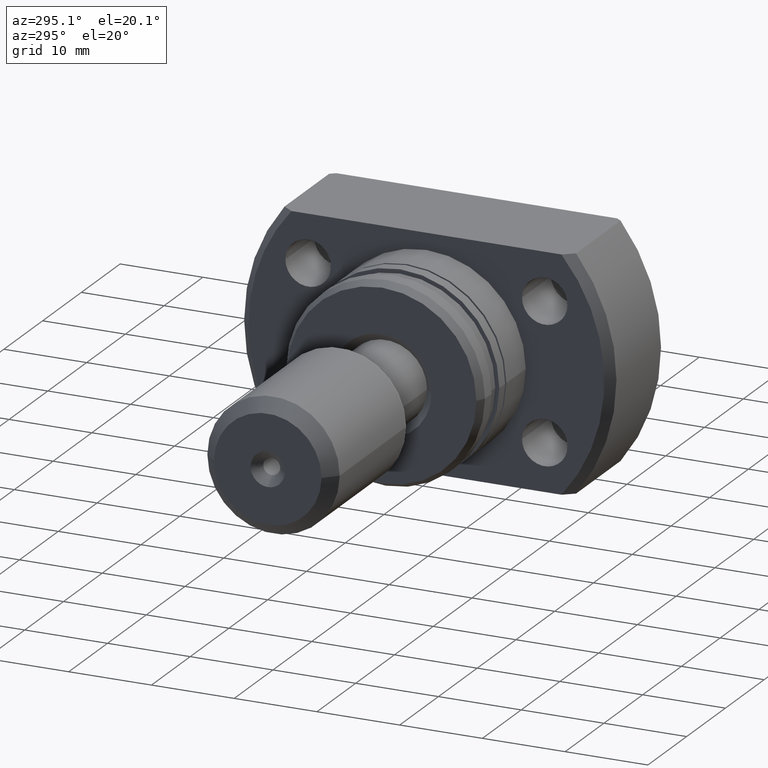
[diagram: clean part render]
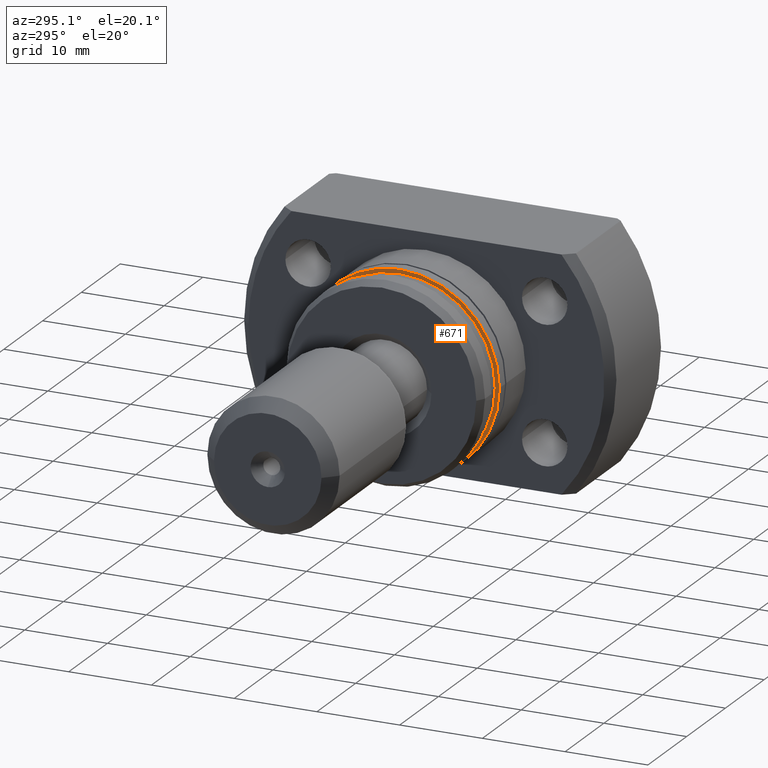
[diagram: same view with one face highlighted and labeled with its STEP entity id]
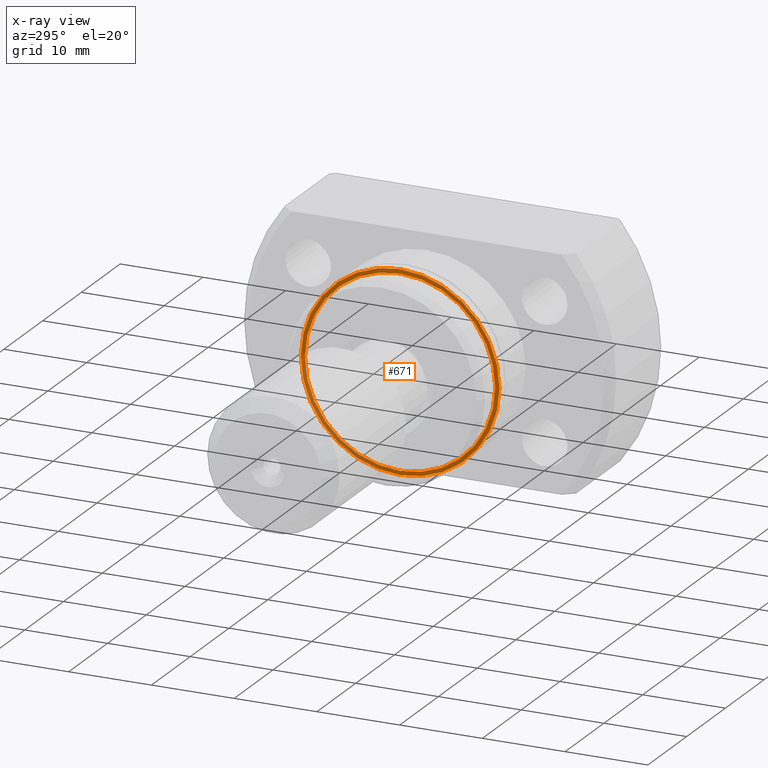
[diagram: x-ray of the same camera — body ghosted, the highlighted face saturated]
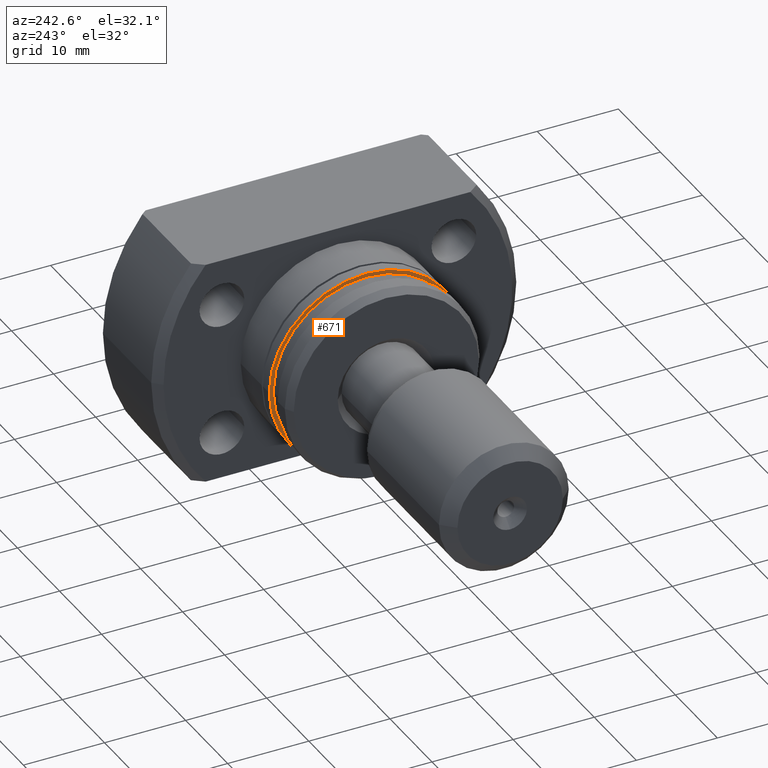
[diagram: same view with one face highlighted and labeled with its STEP entity id]
A machine part, auxiliary view. The second image highlights one B-rep face of the part: STEP entity #671.
The next image is the same camera in x-ray: the body ghosted, the highlighted face saturated — about 24% of this face is hidden behind the body in this view.
A second angle (auxiliary view) of the same face is appended — the face is thin or edge-on in the first view.
In plain terms, the highlighted planar face has unit normal (1, 0, 0).
Its self-contained STEP definition (entity closure, byte-faithful):
#153 = CIRCLE ( 'NONE', #950, 11.99999999999999645 ) ;
#213 = CIRCLE ( 'NONE', #2869, 11.49999999999999112 ) ;
#219 = VERTEX_POINT ( 'NONE', #1555 ) ;
#237 = DIRECTION ( 'NONE',  ( 1.000000000000000000, 4.998558363877804092E-19, -0.000000000000000000 ) ) ;
#293 = CARTESIAN_POINT ( 'NONE',  ( 4.699999999998548894, 2.349322431021842676E-18, 0.000000000000000000 ) ) ;
#351 = EDGE_CURVE ( 'NONE', #2557, #2621, #153, .T. ) ;
#425 = EDGE_LOOP ( 'NONE', ( #3165, #1773 ) ) ;
#535 = AXIS2_PLACEMENT_3D ( 'NONE', #1577, #2581, #2077 ) ;
#600 = DIRECTION ( 'NONE',  ( 0.000000000000000000, 1.000000000000000000, 0.000000000000000000 ) ) ;
#636 = EDGE_CURVE ( 'NONE', #2621, #2557, #1060, .T. ) ;
#648 = CARTESIAN_POINT ( 'NONE',  ( 4.699999999998548894, 11.99999999999999645, 0.000000000000000000 ) ) ;
#671 = ADVANCED_FACE ( 'NONE', ( #2035, #1805 ), #1597, .F. ) ;
#822 = DIRECTION ( 'NONE',  ( 1.000000000000000000, 4.998558363877804092E-19, -0.000000000000000000 ) ) ;
#904 = CARTESIAN_POINT ( 'NONE',  ( 4.699999999998548894, -11.49999999999999112, 1.408343819019455190E-15 ) ) ;
#928 = CARTESIAN_POINT ( 'NONE',  ( 4.699999999998548894, 2.349322431021842676E-18, 0.000000000000000000 ) ) ;
#950 = AXIS2_PLACEMENT_3D ( 'NONE', #1156, #1416, #1673 ) ;
#1060 = CIRCLE ( 'NONE', #3124, 11.99999999999999645 ) ;
#1084 = ORIENTED_EDGE ( 'NONE', *, *, #636, .F. ) ;
#1132 = DIRECTION ( 'NONE',  ( 1.000000000000000000, 4.998558363877804092E-19, -0.000000000000000000 ) ) ;
#1156 = CARTESIAN_POINT ( 'NONE',  ( 4.699999999998548894, 2.349322431021842676E-18, 0.000000000000000000 ) ) ;
#1416 = DIRECTION ( 'NONE',  ( 1.000000000000000000, 4.998558363877804092E-19, -0.000000000000000000 ) ) ;
#1441 = VERTEX_POINT ( 'NONE', #904 ) ;
#1555 = CARTESIAN_POINT ( 'NONE',  ( 4.699999999998548894, 11.49999999999999112, 0.000000000000000000 ) ) ;
#1577 = CARTESIAN_POINT ( 'NONE',  ( 4.699999999998547118, -11.49999999999999112, 0.000000000000000000 ) ) ;
#1597 = PLANE ( 'NONE',  #535 ) ;
#1636 = CARTESIAN_POINT ( 'NONE',  ( 4.699999999998548894, -11.99999999999999645, 1.469576158976823553E-15 ) ) ;
#1673 = DIRECTION ( 'NONE',  ( 0.000000000000000000, 1.000000000000000000, 0.000000000000000000 ) ) ;
#1718 = ORIENTED_EDGE ( 'NONE', *, *, #351, .F. ) ;
#1773 = ORIENTED_EDGE ( 'NONE', *, *, #2285, .T. ) ;
#1805 = FACE_BOUND ( 'NONE', #425, .T. ) ;
#1820 = DIRECTION ( 'NONE',  ( 0.000000000000000000, 1.000000000000000000, 0.000000000000000000 ) ) ;
#1887 = CARTESIAN_POINT ( 'NONE',  ( 4.699999999998548894, 2.349322431021842676E-18, 0.000000000000000000 ) ) ;
#2035 = FACE_OUTER_BOUND ( 'NONE', #2742, .T. ) ;
#2077 = DIRECTION ( 'NONE',  ( -4.998558363877804092E-19, 1.000000000000000000, 0.000000000000000000 ) ) ;
#2266 = AXIS2_PLACEMENT_3D ( 'NONE', #1887, #1132, #600 ) ;
#2285 = EDGE_CURVE ( 'NONE', #1441, #219, #213, .T. ) ;
#2557 = VERTEX_POINT ( 'NONE', #1636 ) ;
#2581 = DIRECTION ( 'NONE',  ( 1.000000000000000000, 4.998558363877804092E-19, -0.000000000000000000 ) ) ;
#2621 = VERTEX_POINT ( 'NONE', #648 ) ;
#2669 = CIRCLE ( 'NONE', #2266, 11.49999999999999112 ) ;
#2698 = DIRECTION ( 'NONE',  ( 0.000000000000000000, 1.000000000000000000, 0.000000000000000000 ) ) ;
#2742 = EDGE_LOOP ( 'NONE', ( #1084, #1718 ) ) ;
#2869 = AXIS2_PLACEMENT_3D ( 'NONE', #928, #237, #2698 ) ;
#3011 = EDGE_CURVE ( 'NONE', #219, #1441, #2669, .T. ) ;
#3124 = AXIS2_PLACEMENT_3D ( 'NONE', #293, #822, #1820 ) ;
#3165 = ORIENTED_EDGE ( 'NONE', *, *, #3011, .T. ) ;